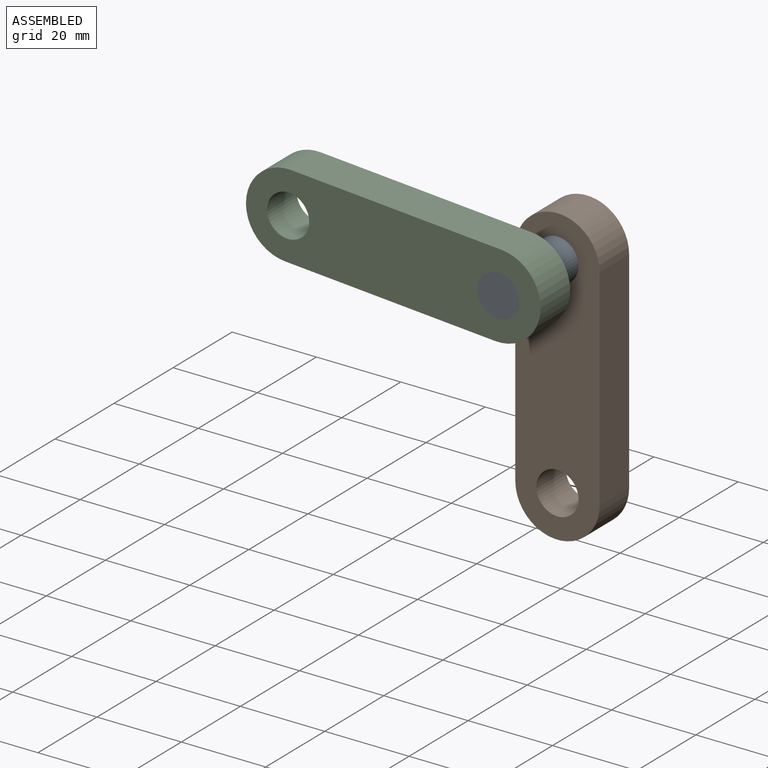
[diagram: assembled view]
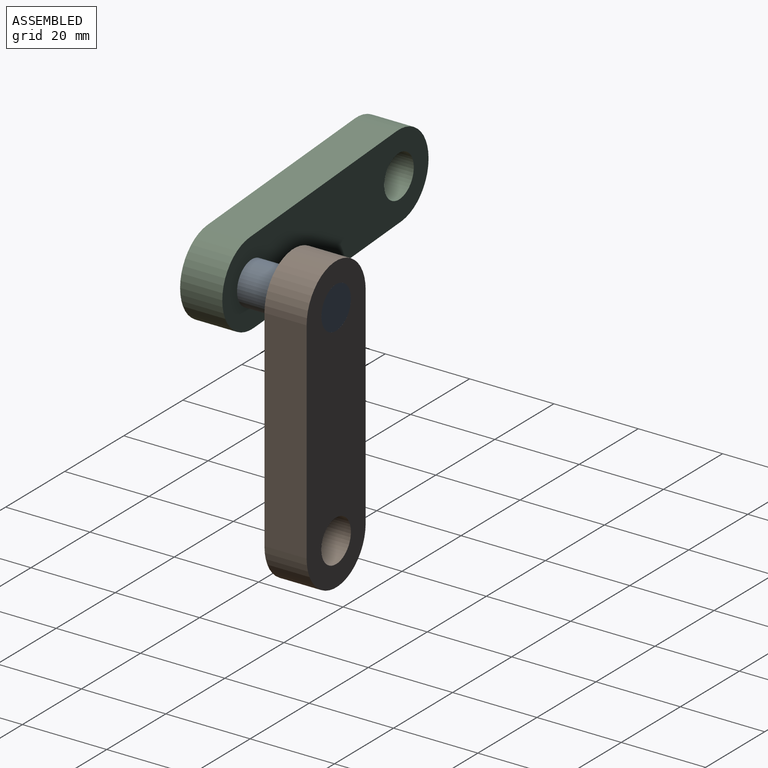
[diagram: assembled view, second angle]
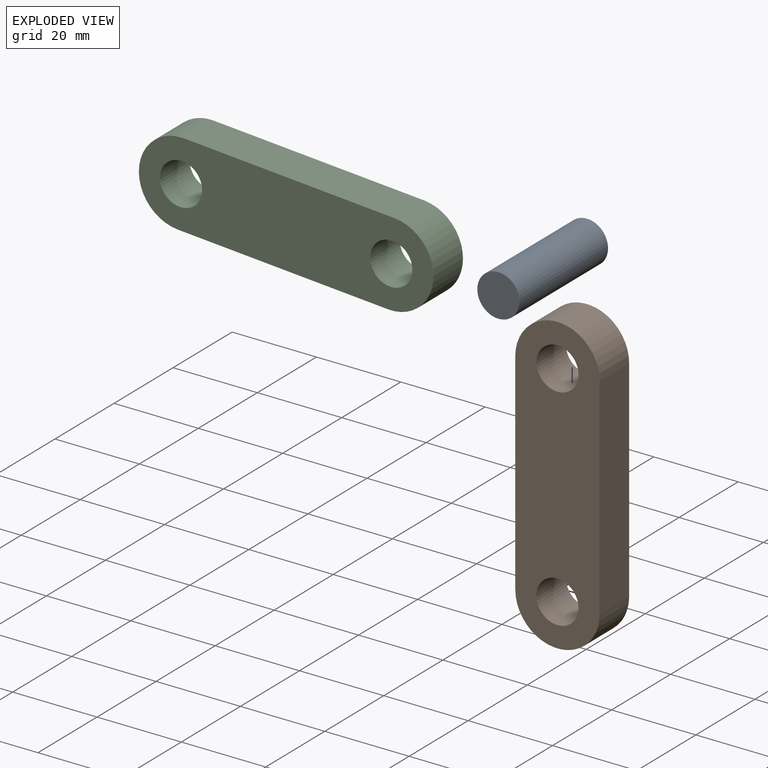
[diagram: exploded view]
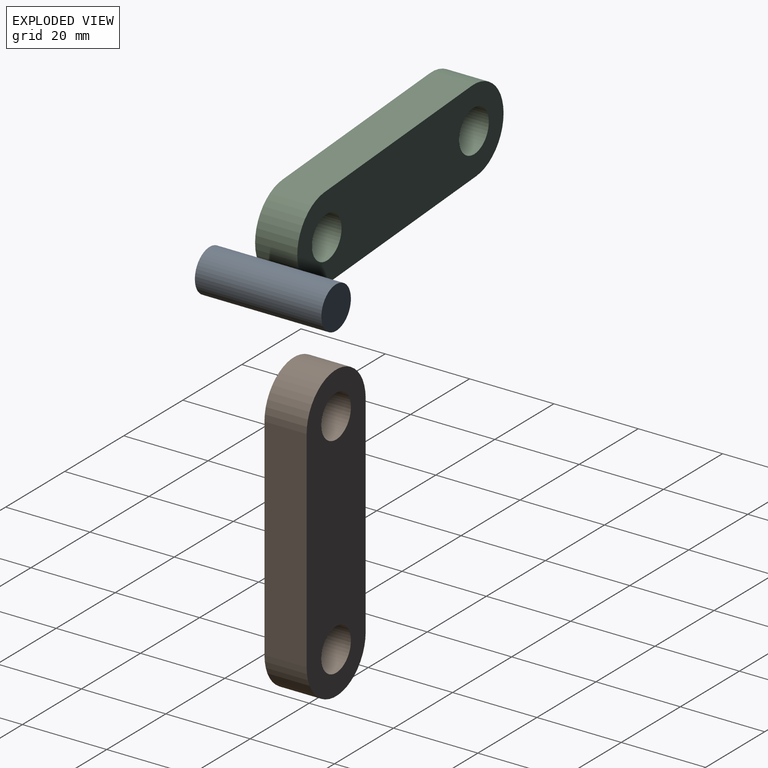
[diagram: exploded view, second angle]
ASSEMBLY  parts=3 mates=2
PART A: 3 faces, bbox 10x30x10 mm
  f0: plane 10x10mm, normal (0,-1,0), area 78.5mm2, adj f2
  f1: plane 10x10mm, normal (0,1,0), area 78.5mm2, adj f2
  f2: cylinder r=5mm len=30mm, axis (0,1,0), area 942.5mm2, adj f0,f1
PART B: 8 faces, bbox 20x10x70 mm
  f0: cylinder r=5mm len=10mm, axis (0,1,0), area 314.2mm2, adj f5,f6
  f1: plane 50x10mm, normal (-1,0,0), area 500mm2, adj f2,f4,f5,f6
  f2: cylinder r=10mm len=20mm, axis (0,1,0), area 314.2mm2, adj f1,f3,f5,f6
  f3: plane 50x10mm, normal (1,0,0), area 500mm2, adj f2,f4,f5,f6
  f4: cylinder r=10mm len=20mm, axis (0,1,0), area 314.2mm2, adj f1,f3,f5,f6
  f5: plane 70x20mm, normal (0,-1,0), area 1157.1mm2, adj f0,f1,f2,f3,f4,f7
  f6: plane 70x20mm, normal (0,1,0), area 1157.1mm2, adj f0,f1,f2,f3,f4,f7
  f7: cylinder r=5mm len=10mm, axis (0,1,0), area 314.2mm2, adj f5,f6
PART C: same geometry as B
PLACE A rot(axis=(0,1,0),66.7deg) t=(-2.89,-25.62,25)mm
PLACE B t=(-2.89,-5.62,-25)mm fixed
PLACE C rot(axis=(0,1,0),94.3deg) t=(-52.75,-25.62,28.75)mm
MATE revolute B.f2 <-> A.f2  axis (0,1,0) through (-2.89,4.38,25)mm
MATE revolute A.f2 <-> C.f2  axis (0,-1,0) through (-2.89,-25.62,25)mm
